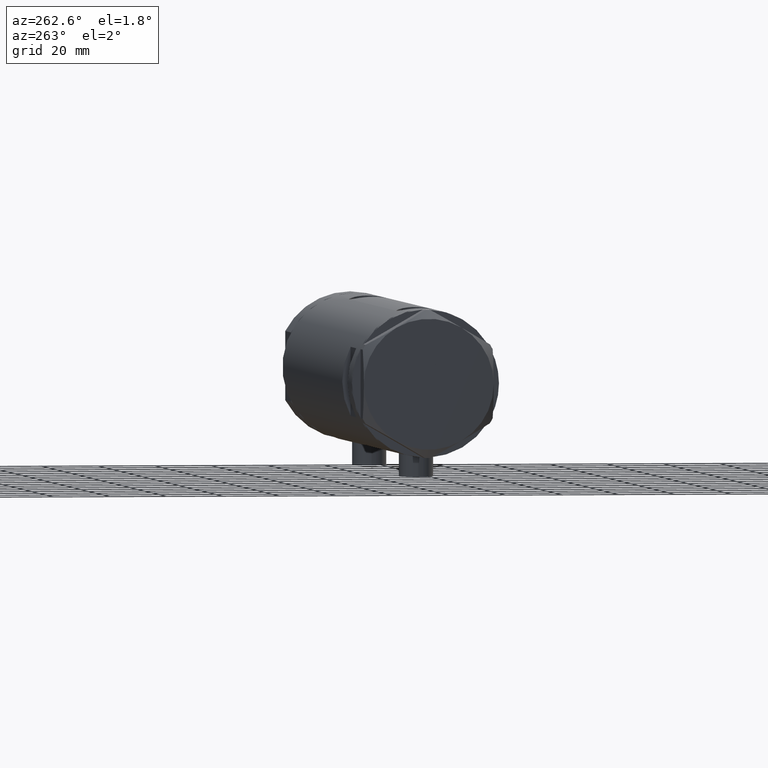
[diagram: clean part render]
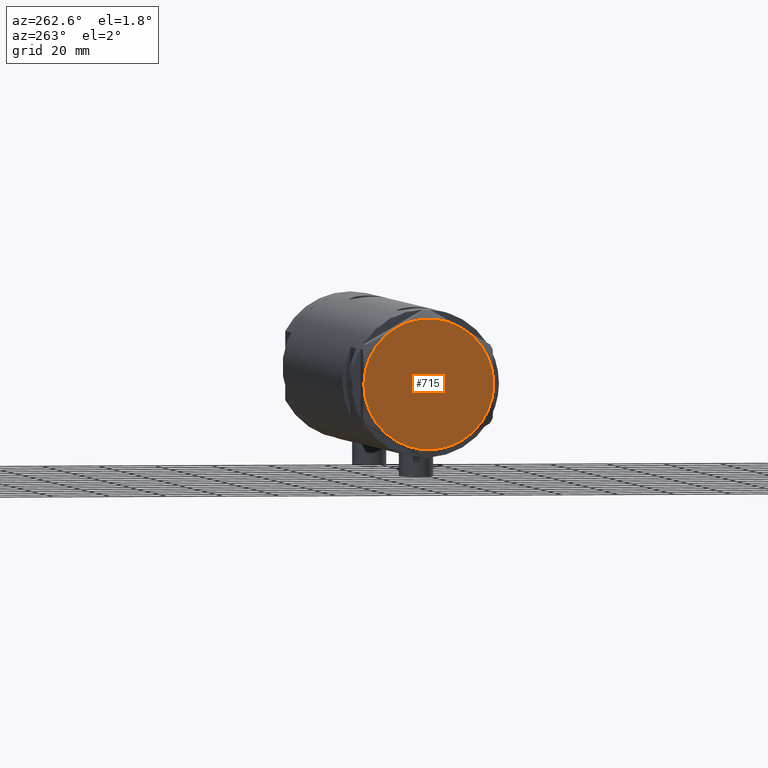
[diagram: same view with one face highlighted and labeled with its STEP entity id]
A machine part, auxiliary view. The second image highlights one B-rep face of the part: STEP entity #715.
In plain terms, the highlighted planar face has unit normal (-1, -0, 0).
Its self-contained STEP definition (entity closure, byte-faithful):
#5 = DIRECTION ( 'NONE',  ( 1.000000000000000000, 0.000000000000000000, 0.000000000000000000 ) ) ;
#18 = CIRCLE ( 'NONE', #245, 23.00000000000004619 ) ;
#56 = CARTESIAN_POINT ( 'NONE',  ( 0.000000000000000000, 0.000000000000000000, 9.000000000000000000 ) ) ;
#112 = DIRECTION ( 'NONE',  ( 1.000000000000000000, 0.000000000000000000, 0.000000000000000000 ) ) ;
#113 = CARTESIAN_POINT ( 'NONE',  ( 0.000000000000000000, 0.000000000000000000, 9.000000000000000000 ) ) ;
#146 = CARTESIAN_POINT ( 'NONE',  ( -11.49999999999990585, -19.91858428704219364, 9.000000000000000000 ) ) ;
#178 = DIRECTION ( 'NONE',  ( 1.000000000000000000, 0.000000000000000000, 0.000000000000000000 ) ) ;
#245 = AXIS2_PLACEMENT_3D ( 'NONE', #1172, #396, #1930 ) ;
#335 = AXIS2_PLACEMENT_3D ( 'NONE', #1083, #2572, #5 ) ;
#396 = DIRECTION ( 'NONE',  ( 0.000000000000000000, 0.000000000000000000, 1.000000000000000000 ) ) ;
#472 = EDGE_CURVE ( 'NONE', #1414, #4475, #641, .T. ) ;
#544 = CARTESIAN_POINT ( 'NONE',  ( -23.00000000000004619, -8.112498833180673323E-14, 9.000000000000000000 ) ) ;
#641 = CIRCLE ( 'NONE', #3375, 23.00000000000004619 ) ;
#715 = ADVANCED_FACE ( 'NONE', ( #4205 ), #3780, .T. ) ;
#749 = EDGE_CURVE ( 'NONE', #3014, #4370, #18, .T. ) ;
#808 = ORIENTED_EDGE ( 'NONE', *, *, #472, .T. ) ;
#890 = DIRECTION ( 'NONE',  ( 0.000000000000000000, 0.000000000000000000, 1.000000000000000000 ) ) ;
#948 = AXIS2_PLACEMENT_3D ( 'NONE', #56, #3035, #3360 ) ;
#1083 = CARTESIAN_POINT ( 'NONE',  ( 0.000000000000000000, 0.000000000000000000, 9.000000000000000000 ) ) ;
#1172 = CARTESIAN_POINT ( 'NONE',  ( 0.000000000000000000, 0.000000000000000000, 9.000000000000000000 ) ) ;
#1298 = CARTESIAN_POINT ( 'NONE',  ( 11.49999999999990408, 19.91858428704219364, 9.000000000000000000 ) ) ;
#1414 = VERTEX_POINT ( 'NONE', #4457 ) ;
#1458 = EDGE_CURVE ( 'NONE', #4370, #2936, #4321, .T. ) ;
#1537 = DIRECTION ( 'NONE',  ( 1.000000000000000000, 0.000000000000000000, 0.000000000000000000 ) ) ;
#1655 = EDGE_CURVE ( 'NONE', #4425, #3014, #4330, .T. ) ;
#1657 = AXIS2_PLACEMENT_3D ( 'NONE', #2786, #3566, #112 ) ;
#1892 = DIRECTION ( 'NONE',  ( 0.000000000000000000, 0.000000000000000000, 1.000000000000000000 ) ) ;
#1919 = DIRECTION ( 'NONE',  ( 1.000000000000000000, 0.000000000000000000, 0.000000000000000000 ) ) ;
#1930 = DIRECTION ( 'NONE',  ( 1.000000000000000000, 0.000000000000000000, 0.000000000000000000 ) ) ;
#2231 = EDGE_CURVE ( 'NONE', #4475, #4425, #2355, .T. ) ;
#2312 = ORIENTED_EDGE ( 'NONE', *, *, #749, .T. ) ;
#2333 = ORIENTED_EDGE ( 'NONE', *, *, #2853, .T. ) ;
#2355 = CIRCLE ( 'NONE', #1657, 23.00000000000004619 ) ;
#2440 = CARTESIAN_POINT ( 'NONE',  ( 11.50000000000018296, -19.91858428704203732, 9.000000000000000000 ) ) ;
#2506 = ORIENTED_EDGE ( 'NONE', *, *, #2231, .T. ) ;
#2572 = DIRECTION ( 'NONE',  ( 0.000000000000000000, 0.000000000000000000, 1.000000000000000000 ) ) ;
#2786 = CARTESIAN_POINT ( 'NONE',  ( 0.000000000000000000, 0.000000000000000000, 9.000000000000000000 ) ) ;
#2853 = EDGE_CURVE ( 'NONE', #2936, #1414, #4582, .T. ) ;
#2936 = VERTEX_POINT ( 'NONE', #1298 ) ;
#3014 = VERTEX_POINT ( 'NONE', #2440 ) ;
#3035 = DIRECTION ( 'NONE',  ( 0.000000000000000000, 0.000000000000000000, 1.000000000000000000 ) ) ;
#3059 = ORIENTED_EDGE ( 'NONE', *, *, #1655, .T. ) ;
#3360 = DIRECTION ( 'NONE',  ( 1.000000000000000000, 0.000000000000000000, -0.000000000000000000 ) ) ;
#3375 = AXIS2_PLACEMENT_3D ( 'NONE', #4539, #1892, #1919 ) ;
#3393 = DIRECTION ( 'NONE',  ( 0.000000000000000000, 0.000000000000000000, 1.000000000000000000 ) ) ;
#3412 = CARTESIAN_POINT ( 'NONE',  ( 22.99999999999995026, 2.373657066004705010E-13, 9.000000000000000000 ) ) ;
#3566 = DIRECTION ( 'NONE',  ( 0.000000000000000000, 0.000000000000000000, 1.000000000000000000 ) ) ;
#3780 = PLANE ( 'NONE',  #948 ) ;
#4123 = CARTESIAN_POINT ( 'NONE',  ( 0.000000000000000000, 0.000000000000000000, 9.000000000000000000 ) ) ;
#4180 = AXIS2_PLACEMENT_3D ( 'NONE', #113, #890, #178 ) ;
#4205 = FACE_OUTER_BOUND ( 'NONE', #4376, .T. ) ;
#4321 = CIRCLE ( 'NONE', #335, 23.00000000000004619 ) ;
#4330 = CIRCLE ( 'NONE', #4180, 23.00000000000004619 ) ;
#4370 = VERTEX_POINT ( 'NONE', #3412 ) ;
#4376 = EDGE_LOOP ( 'NONE', ( #2312, #4417, #2333, #808, #2506, #3059 ) ) ;
#4417 = ORIENTED_EDGE ( 'NONE', *, *, #1458, .T. ) ;
#4418 = AXIS2_PLACEMENT_3D ( 'NONE', #4123, #3393, #1537 ) ;
#4425 = VERTEX_POINT ( 'NONE', #146 ) ;
#4457 = CARTESIAN_POINT ( 'NONE',  ( -11.50000000000004441, 19.91858428704211548, 9.000000000000000000 ) ) ;
#4475 = VERTEX_POINT ( 'NONE', #544 ) ;
#4539 = CARTESIAN_POINT ( 'NONE',  ( 0.000000000000000000, 0.000000000000000000, 9.000000000000000000 ) ) ;
#4582 = CIRCLE ( 'NONE', #4418, 23.00000000000004619 ) ;